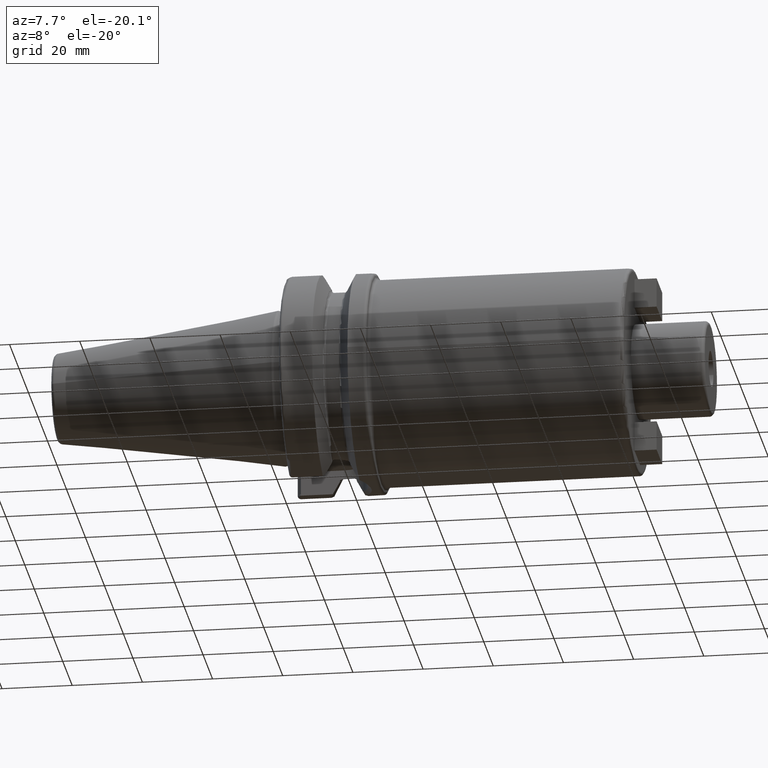
[diagram: clean part render]
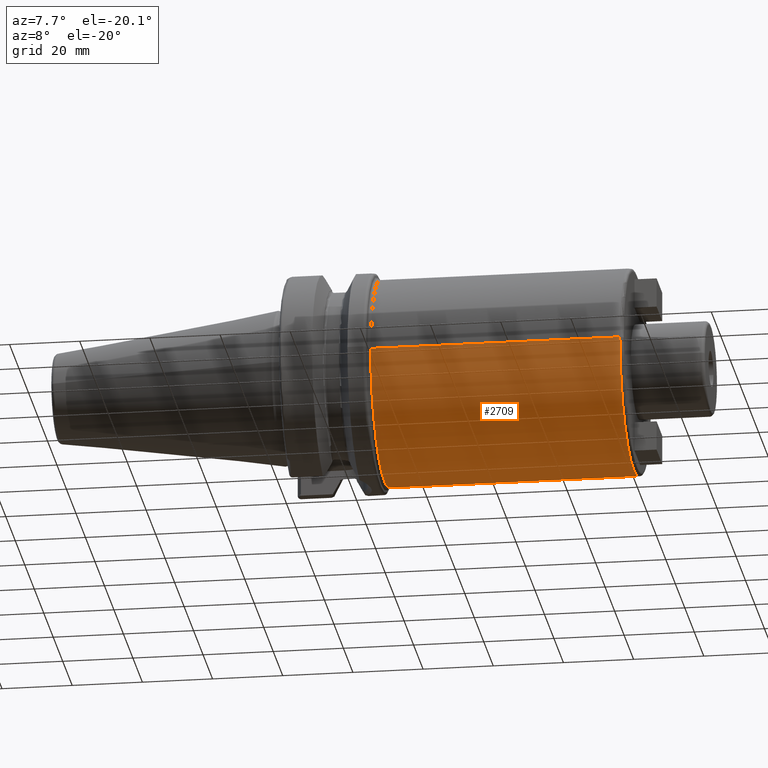
[diagram: same view with one face highlighted and labeled with its STEP entity id]
A machine part, auxiliary view. The second image highlights one B-rep face of the part: STEP entity #2709.
In plain terms, the highlighted cylindrical surface (partial cylindrical patch) has radius 29.5 mm, axis along (1, 0, 0).
Its self-contained STEP definition (entity closure, byte-faithful):
#846=DIRECTION('',(-1.E0,0.E0,1.516947937584E-14));
#847=VECTOR('',#846,7.100003906288E1);
#848=CARTESIAN_POINT('',(9.9E1,-2.95E1,9.270786586422E-14));
#849=LINE('',#848,#847);
#850=CARTESIAN_POINT('',(9.9E1,0.E0,0.E0));
#851=DIRECTION('',(-1.E0,0.E0,0.E0));
#852=DIRECTION('',(0.E0,1.E0,0.E0));
#853=AXIS2_PLACEMENT_3D('',#850,#851,#852);
#855=DIRECTION('',(-1.E0,0.E0,-1.516860919025E-14));
#856=VECTOR('',#855,7.100003906288E1);
#857=CARTESIAN_POINT('',(9.9E1,2.95E1,-1.001676307831E-13));
#858=LINE('',#857,#856);
#859=CARTESIAN_POINT('',(2.799996093712E1,0.E0,0.E0));
#860=DIRECTION('',(1.E0,0.E0,0.E0));
#861=DIRECTION('',(0.E0,-1.E0,0.E0));
#862=AXIS2_PLACEMENT_3D('',#859,#860,#861);
#1513=CARTESIAN_POINT('',(9.9E1,-2.95E1,9.270786586422E-14));
#1514=CARTESIAN_POINT('',(2.799996093712E1,-2.95E1,1.169741494112E-12));
#1515=VERTEX_POINT('',#1513);
#1516=VERTEX_POINT('',#1514);
#1517=CARTESIAN_POINT('',(9.9E1,2.95E1,-1.001676307831E-13));
#1518=CARTESIAN_POINT('',(2.799996093712E1,2.95E1,-1.177139475821E-12));
#1519=VERTEX_POINT('',#1517);
#1520=VERTEX_POINT('',#1518);
#2695=CARTESIAN_POINT('',(2.23E1,0.E0,0.E0));
#2696=DIRECTION('',(1.E0,0.E0,0.E0));
#2697=DIRECTION('',(0.E0,-1.E0,0.E0));
#2698=AXIS2_PLACEMENT_3D('',#2695,#2696,#2697);
#2699=CYLINDRICAL_SURFACE('',#2698,2.95E1);
#2701=ORIENTED_EDGE('',*,*,#2700,.F.);
#2703=ORIENTED_EDGE('',*,*,#2702,.F.);
#2705=ORIENTED_EDGE('',*,*,#2704,.T.);
#2706=ORIENTED_EDGE('',*,*,#2677,.F.);
#2707=EDGE_LOOP('',(#2701,#2703,#2705,#2706));
#2708=FACE_OUTER_BOUND('',#2707,.F.);
#2709=ADVANCED_FACE('',(#2708),#2699,.T.);
#854=CIRCLE('',#853,2.95E1);
#863=CIRCLE('',#862,2.95E1);
#2677=EDGE_CURVE('',#1516,#1520,#863,.T.);
#2700=EDGE_CURVE('',#1515,#1516,#849,.T.);
#2702=EDGE_CURVE('',#1519,#1515,#854,.T.);
#2704=EDGE_CURVE('',#1519,#1520,#858,.T.);